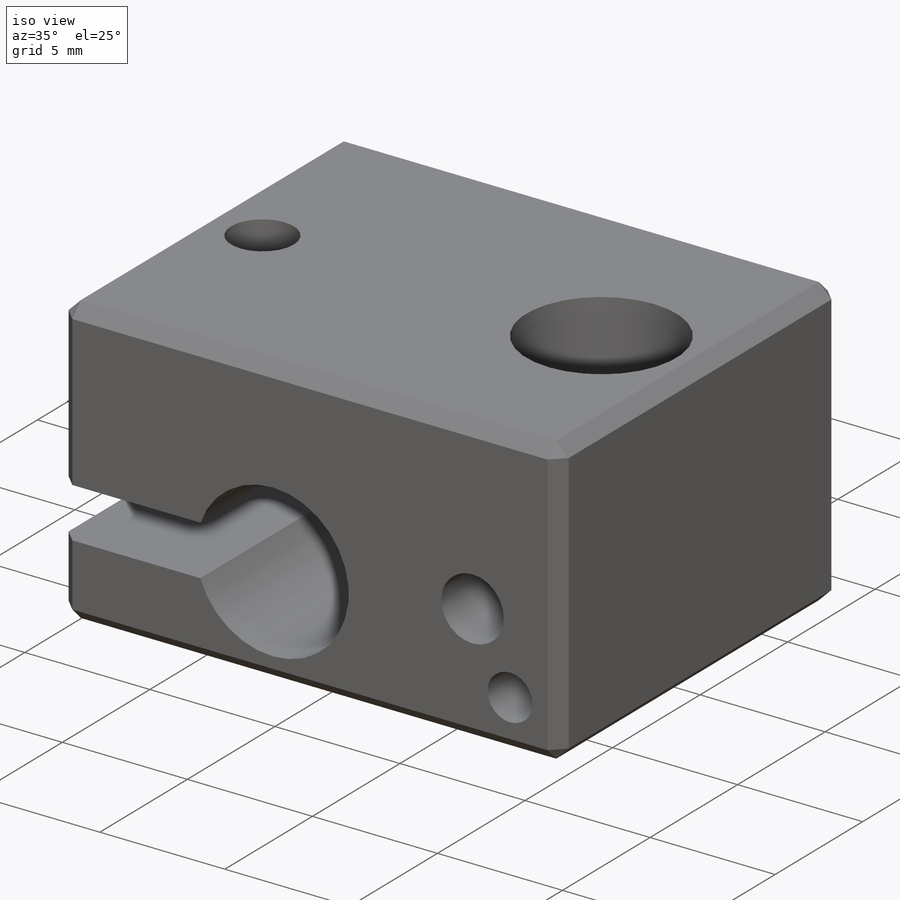
[diagram: iso view]
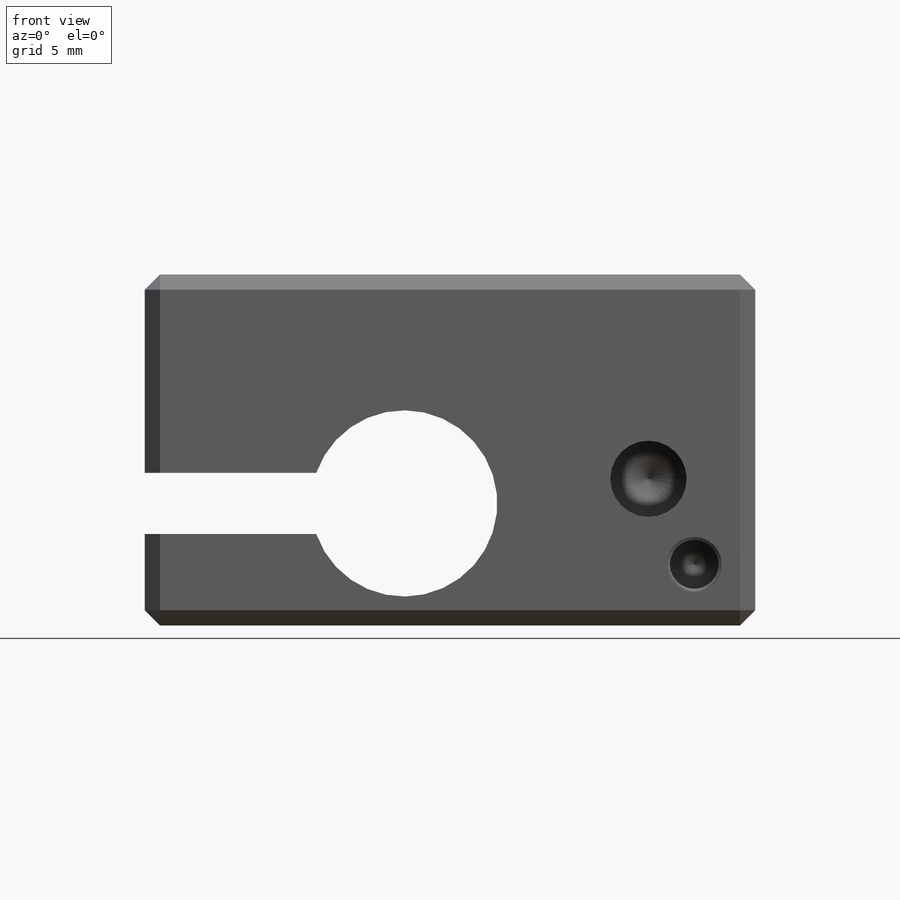
[diagram: front view]
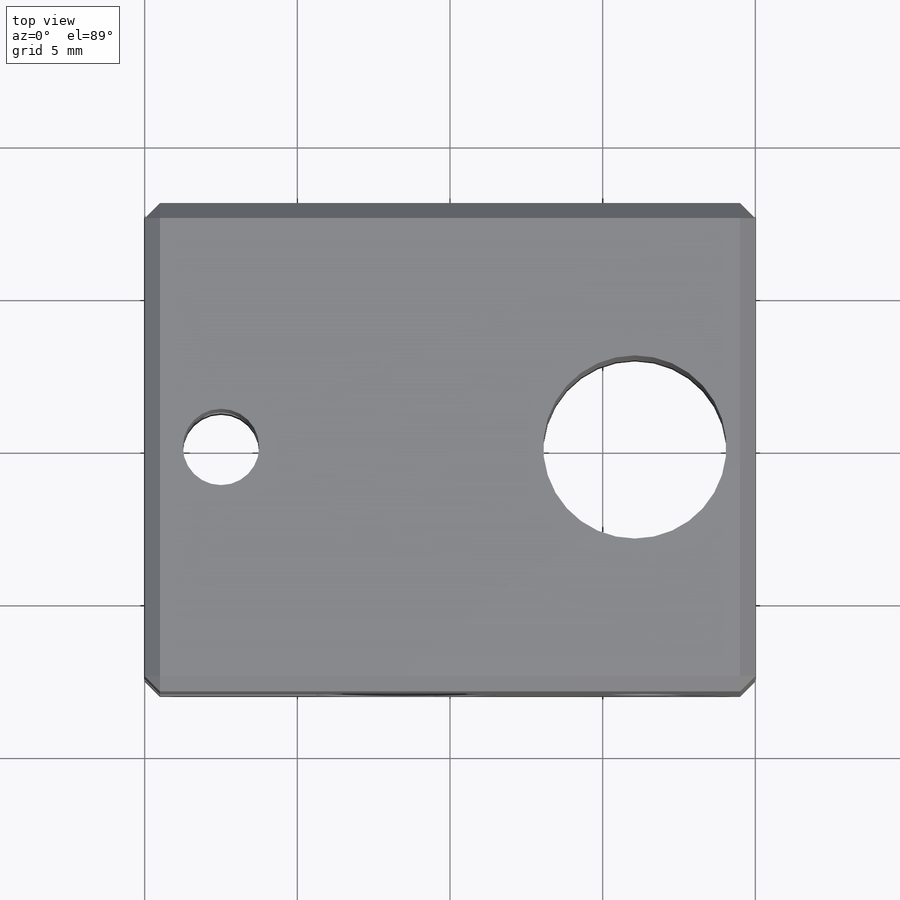
[diagram: top view]
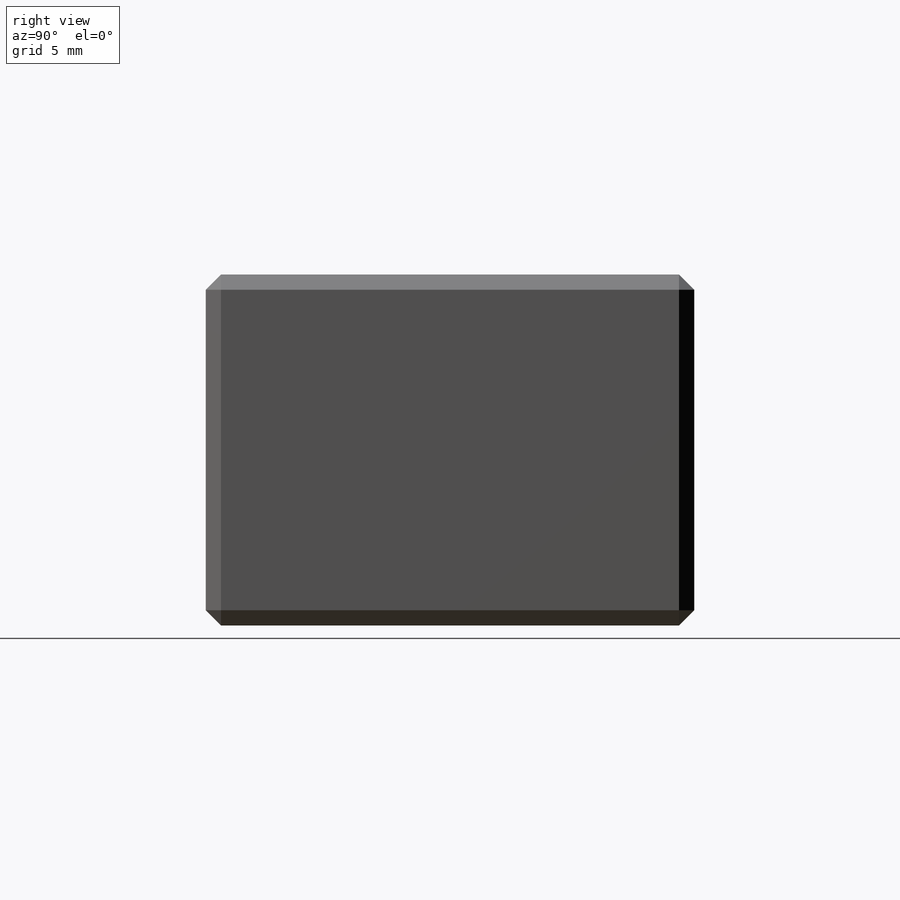
[diagram: right view]
SOLIDWORKS PART (.sldprt)
format: sldprt  version: not decoded by parser v0  size: 343,040 bytes
history: native  units: mm
features: sketch x11, hole x5, material x1, extrude x1, chamfer x1, thread x1 (+13 scaffold rows collapsed)
feature tree (33):
  scaffold x13  (default folders/planes/origin — collapsed)
  material  "AISI 304"
  sketch  "Sketch1"  dims[c1.D3=~3.118588mm c1.D5=3.05mm c1.D1=~76.773233mm c1.D2=~99.101856mm c2.D1=~38.680591mm c2.D2=~73.917019mm c3.D1=20.0mm c3.D2=11.5mm c3.D3=4.0mm c3.D4=2.0mm c3.D6=11.5mm c3.D7=3.0mm]
  extrude  "Boss-Extrude1"  Depth=16mm
  chamfer  "Chamfer1"  Distance=0.5mm Angle=45deg
  hole  "M3x0.5 Tapped Hole1"  Diameter=2.5mm Depth=3.5mm
  sketch  "Sketch3"  dims[D1=4.8mm D2=3.5mm]
  sketch  "Sketch2"  dims[hole-wizard template sketch: 47 standard entries collapsed; hole parameters kept: c15.Tap Drill Depth=3.5mm c15.D3=~14.816244mm c15.Drill Angle=118.0deg]
  thread  "Hole Thread2"  Diameter=3.5mm  [1 undecoded]
  hole  "Ø1.8 (1.8) Diameter Hole1"  Diameter=1.8mm Depth=2mm
  sketch  "Sketch5"  dims[D1=2.0mm D2=2.0mm]
  sketch  "Sketch4"  dims[hole-wizard template sketch: 47 standard entries collapsed; hole parameters kept: c15.Hole Depth=2.0mm c15.D3=~14.816244mm c15.Drill Angle=118.0deg]
  hole  "Ø1.6 (1.6) Diameter Hole1"  Diameter=1.6mm Depth=4.5mm
  sketch  "Sketch7"
  sketch  "Sketch6"  dims[hole-wizard template sketch: 47 standard entries collapsed; hole parameters kept: c15.Hole Depth=4.5mm c15.D3=~14.816244mm c15.Drill Angle=118.0deg]
  hole  "M3x0.5 Tapped Hole2"  Diameter=2.5mm Depth=11.5mm
  sketch  "Sketch9"  dims[D1=17.5mm]
  sketch  "Sketch8"  dims[hole-wizard template sketch: 60 standard entries collapsed; hole parameters kept: c18.Thru Tap Drill Depth=11.5mm]
  hole  "M6x1.0 Tapped Hole1"  Diameter=6mm Depth=11.5mm
  sketch  "Sketch11"
  sketch  "Sketch12"  dims[hole-wizard template sketch: 59 standard entries collapsed; hole parameters kept: c18.Thread Major Dia.=6.0mm c18.Thru Tap Drill Depth=11.5mm]
decode coverage: 17 of 19 modeling features carry decoded parameters
note: ~ marks probable driven/reference dimensions
note: 1 parameter value undecoded
summary: Diameter pulled from absorbed wizard sketch
note: suppression state not decoded; provenance and decode notes live in map.json
